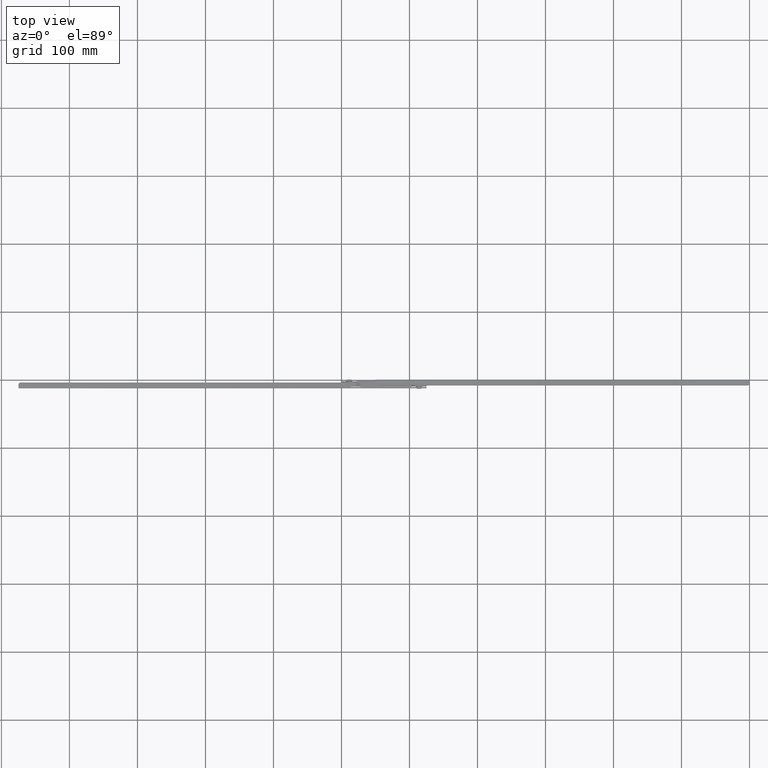
[diagram: clean part render]
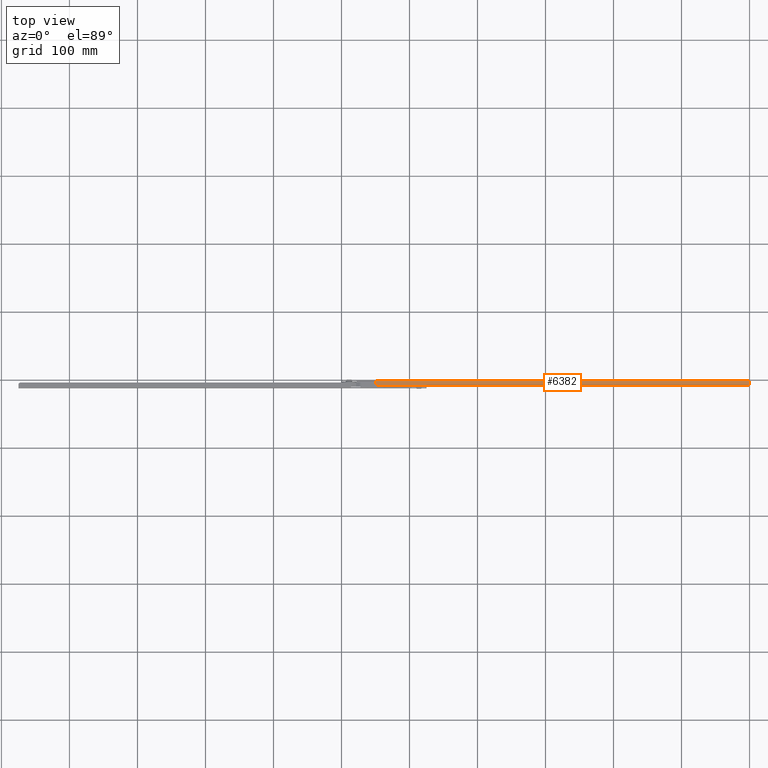
[diagram: same view with one face highlighted and labeled with its STEP entity id]
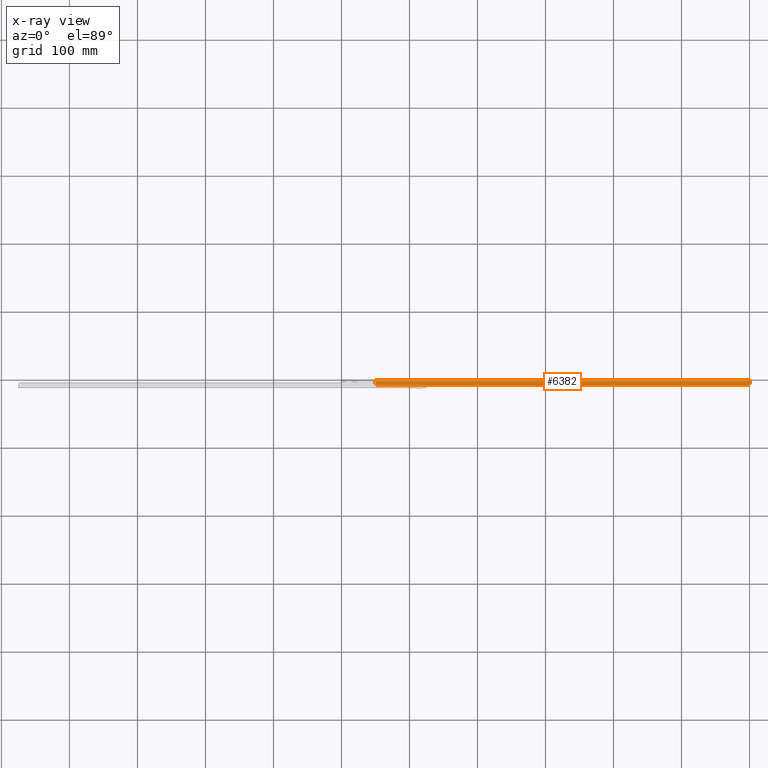
[diagram: x-ray of the same camera — body ghosted, the highlighted face saturated]
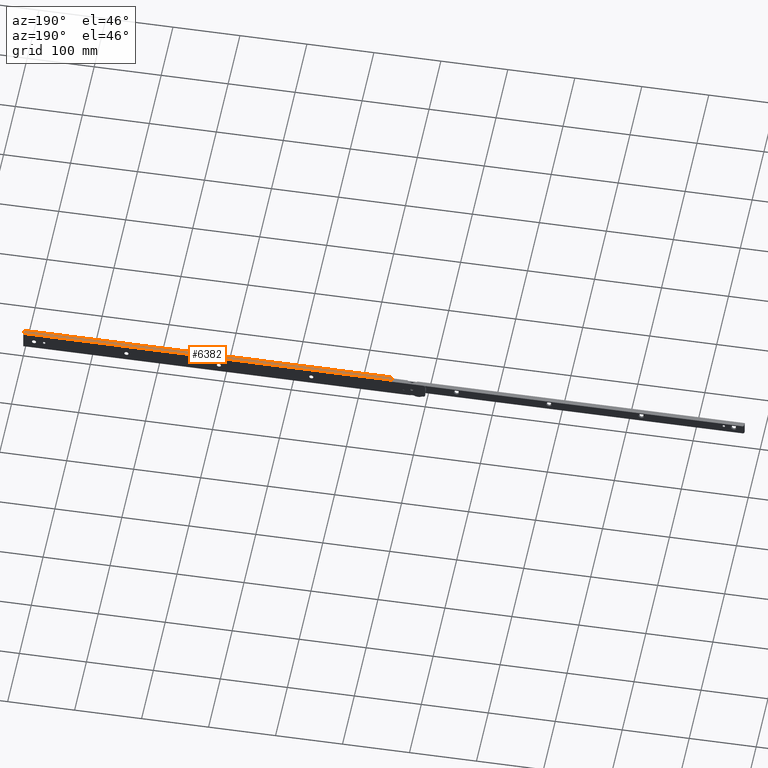
[diagram: same view with one face highlighted and labeled with its STEP entity id]
A machine part, top view. The second image highlights one B-rep face of the part: STEP entity #6382.
The next image is the same camera in x-ray: the body ghosted, the highlighted face saturated — about 0% of this face is hidden behind the body in this view.
A second angle (auxiliary view) of the same face is appended — the face is thin or edge-on in the first view.
In plain terms, the highlighted face is a freeform B-spline surface patch.
Its self-contained STEP definition (entity closure, byte-faithful):
#5643=CARTESIAN_POINT('',(50.0,-5.0,6.000000000000201));
#5644=VERTEX_POINT('',#5643);
#5645=CARTESIAN_POINT('',(53.0,-8.0,6.000000000000201));
#5646=VERTEX_POINT('',#5645);
#5647=CARTESIAN_POINT('',(49.999999999999993,-5.0,6.000000000000201));
#5648=CARTESIAN_POINT('',(49.999999999999986,-8.0,6.000000000000202));
#5649=CARTESIAN_POINT('',(53.0,-8.0,6.000000000000201));
#5657=(BOUNDED_CURVE()B_SPLINE_CURVE(2,(#5647,#5648,#5649),.UNSPECIFIED.,.F.,.U.)CURVE()GEOMETRIC_REPRESENTATION_ITEM()QUASI_UNIFORM_CURVE()RATIONAL_B_SPLINE_CURVE((1.0,0.707106781186548,1.0))REPRESENTATION_ITEM(''));
#5658=EDGE_CURVE('',#5644,#5646,#5657,.T.);
#5826=CARTESIAN_POINT('',(597.0,-8.0,6.000000000000201));
#5827=VERTEX_POINT('',#5826);
#5828=CARTESIAN_POINT('',(600.0,-5.0,6.000000000000201));
#5829=VERTEX_POINT('',#5828);
#5830=CARTESIAN_POINT('',(597.0,-8.0,6.000000000000201));
#5831=CARTESIAN_POINT('',(599.999999999999890,-8.0,6.000000000000202));
#5832=CARTESIAN_POINT('',(600.0,-5.0,6.000000000000201));
#5840=(BOUNDED_CURVE()B_SPLINE_CURVE(2,(#5830,#5831,#5832),.UNSPECIFIED.,.F.,.U.)CURVE()GEOMETRIC_REPRESENTATION_ITEM()QUASI_UNIFORM_CURVE()RATIONAL_B_SPLINE_CURVE((1.0,0.707106781186548,1.0))REPRESENTATION_ITEM(''));
#5841=EDGE_CURVE('',#5827,#5829,#5840,.T.);
#6036=CARTESIAN_POINT('',(50.0,-1.599999999999910,6.000000000000201));
#6037=VERTEX_POINT('',#6036);
#6038=CARTESIAN_POINT('',(50.0,-1.599999999999910,6.000000000000201));
#6039=CARTESIAN_POINT('',(50.0,-5.0,6.000000000000201));
#6040=QUASI_UNIFORM_CURVE('',1,(#6038,#6039),.UNSPECIFIED.,.F.,.U.);
#6041=EDGE_CURVE('',#6037,#5644,#6040,.T.);
#6148=CARTESIAN_POINT('',(600.0,-1.599999999999910,6.000000000000201));
#6149=VERTEX_POINT('',#6148);
#6150=CARTESIAN_POINT('',(600.0,-1.599999999999910,6.000000000000201));
#6151=CARTESIAN_POINT('',(600.0,-5.0,6.000000000000201));
#6152=QUASI_UNIFORM_CURVE('',1,(#6150,#6151),.UNSPECIFIED.,.F.,.U.);
#6153=EDGE_CURVE('',#6149,#5829,#6152,.T.);
#6241=CARTESIAN_POINT('',(600.0,-1.599999999999910,6.000000000000201));
#6242=CARTESIAN_POINT('',(50.0,-1.599999999999910,6.000000000000201));
#6243=QUASI_UNIFORM_CURVE('',1,(#6241,#6242),.UNSPECIFIED.,.F.,.U.);
#6244=EDGE_CURVE('',#6149,#6037,#6243,.T.);
#6360=CARTESIAN_POINT('',(597.0,-8.0,6.000000000000201));
#6361=CARTESIAN_POINT('',(53.0,-8.0,6.000000000000201));
#6362=QUASI_UNIFORM_CURVE('',1,(#6360,#6361),.UNSPECIFIED.,.F.,.U.);
#6363=EDGE_CURVE('',#5827,#5646,#6362,.T.);
#6369=CARTESIAN_POINT('',(22.527501066006771,-8.319679987595562,6.000000000000201));
#6370=CARTESIAN_POINT('',(22.527501066006771,-1.280319840742970,6.000000000000201));
#6371=CARTESIAN_POINT('',(627.472513686142860,-8.319679987595562,6.000000000000201));
#6372=CARTESIAN_POINT('',(627.472513686142860,-1.280319840742970,6.000000000000201));
#6373=B_SPLINE_SURFACE_WITH_KNOTS('',1,1,((#6369,#6371),(#6370,#6372)),.UNSPECIFIED.,.F.,.F.,.U.,(2,2),(2,2),(0.0,7.039360146852591),(0.0,604.945012620136140),.UNSPECIFIED.);
#6374=ORIENTED_EDGE('',*,*,#6363,.F.);
#6375=ORIENTED_EDGE('',*,*,#5841,.T.);
#6376=ORIENTED_EDGE('',*,*,#6153,.F.);
#6377=ORIENTED_EDGE('',*,*,#6244,.T.);
#6378=ORIENTED_EDGE('',*,*,#6041,.T.);
#6379=ORIENTED_EDGE('',*,*,#5658,.T.);
#6380=EDGE_LOOP('',(#6374,#6375,#6376,#6377,#6378,#6379));
#6381=FACE_OUTER_BOUND('',#6380,.T.);
#6382=ADVANCED_FACE('',(#6381),#6373,.F.);